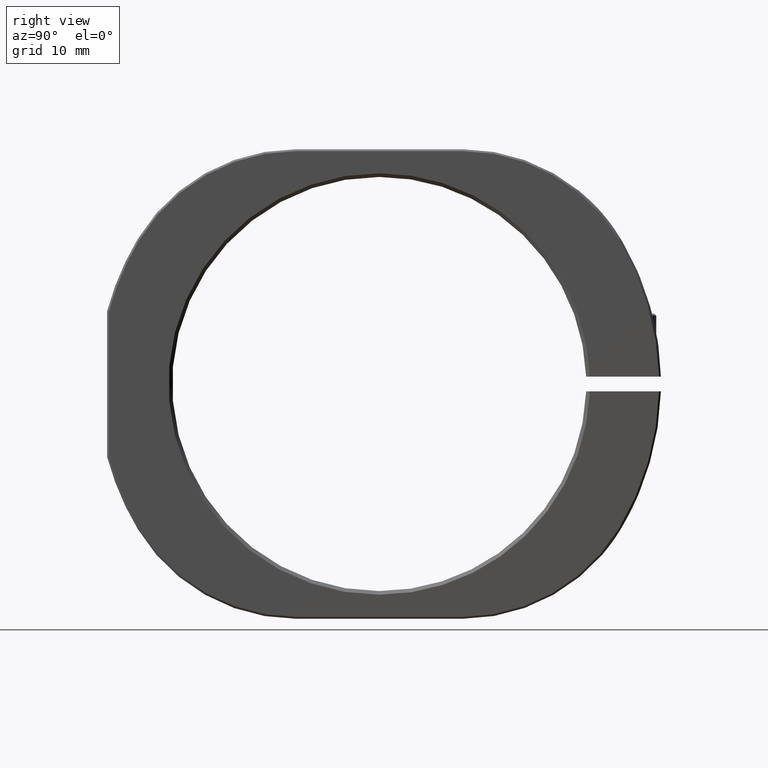
[diagram: clean part render]
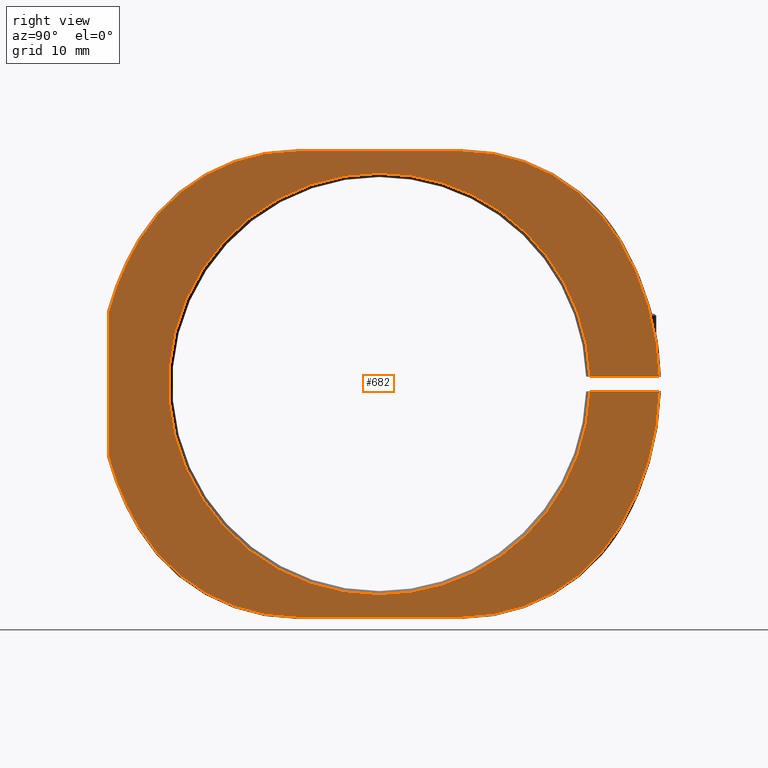
[diagram: same view with one face highlighted and labeled with its STEP entity id]
A machine part, right view. The second image highlights one B-rep face of the part: STEP entity #682.
In plain terms, the highlighted planar face has unit normal (1, 0, 0).
Its self-contained STEP definition (entity closure, byte-faithful):
#4 = CIRCLE ( 'NONE', #827, 28.50000000000001066 ) ;
#35 = ORIENTED_EDGE ( 'NONE', *, *, #2029, .T. ) ;
#49 = CARTESIAN_POINT ( 'NONE',  ( 0.5085676037483114476, -18.74742428530111127, 6.750000000000002665 ) ) ;
#81 = CARTESIAN_POINT ( 'NONE',  ( 0.5085676037483114476, 3.706751272933050512, -31.49999999999996447 ) ) ;
#90 = DIRECTION ( 'NONE',  ( 0.0000000000000000000, 0.0000000000000000000, -1.000000000000000000 ) ) ;
#112 = EDGE_CURVE ( 'NONE', #381, #2086, #1621, .T. ) ;
#114 = EDGE_CURVE ( 'NONE', #668, #1264, #123, .T. ) ;
#123 = LINE ( 'NONE', #1246, #1842 ) ;
#155 = CIRCLE ( 'NONE', #685, 37.84999999999995879 ) ;
#189 = EDGE_CURVE ( 'NONE', #381, #473, #649, .T. ) ;
#214 = CARTESIAN_POINT ( 'NONE',  ( 0.5085676037483114476, -7.520336506184027492, -28.50000000000001066 ) ) ;
#247 = CIRCLE ( 'NONE', #1894, 24.74999999999997513 ) ;
#258 = VERTEX_POINT ( 'NONE', #1992 ) ;
#276 = CARTESIAN_POINT ( 'NONE',  ( 0.5085676037483114476, 3.706751272933052288, 6.750000000000009770 ) ) ;
#277 = DIRECTION ( 'NONE',  ( 0.0000000000000000000, 0.0000000000000000000, -1.000000000000000000 ) ) ;
#278 = CARTESIAN_POINT ( 'NONE',  ( 0.5085676037483114476, -7.520336506184027492, 0.0000000000000000000 ) ) ;
#284 = DIRECTION ( 'NONE',  ( 1.000000000000000000, 0.0000000000000000000, 0.0000000000000000000 ) ) ;
#293 = CARTESIAN_POINT ( 'NONE',  ( 0.5085676037483114476, -7.520336506184027492, 0.0000000000000000000 ) ) ;
#313 = CIRCLE ( 'NONE', #2050, 24.74999999999998224 ) ;
#315 = ORIENTED_EDGE ( 'NONE', *, *, #1986, .T. ) ;
#337 = AXIS2_PLACEMENT_3D ( 'NONE', #1360, #1727, #1547 ) ;
#351 = DIRECTION ( 'NONE',  ( -0.0000000000000000000, 1.000000000000000000, 1.230557108643588432E-16 ) ) ;
#356 = CARTESIAN_POINT ( 'NONE',  ( 0.5085676037483114476, 46.43885358557098186, -0.9999999999999963363 ) ) ;
#381 = VERTEX_POINT ( 'NONE', #1804 ) ;
#390 = AXIS2_PLACEMENT_3D ( 'NONE', #1012, #660, #639 ) ;
#405 = AXIS2_PLACEMENT_3D ( 'NONE', #1754, #2091, #653 ) ;
#473 = VERTEX_POINT ( 'NONE', #214 ) ;
#475 = CARTESIAN_POINT ( 'NONE',  ( 0.5085676037483114476, -18.74742428530112193, 31.49999999999997868 ) ) ;
#478 = DIRECTION ( 'NONE',  ( 1.000000000000000000, 0.0000000000000000000, 0.0000000000000000000 ) ) ;
#524 = CARTESIAN_POINT ( 'NONE',  ( 0.5085676037483114476, -7.520336506184027492, 0.0000000000000000000 ) ) ;
#540 = ORIENTED_EDGE ( 'NONE', *, *, #912, .T. ) ;
#548 = VERTEX_POINT ( 'NONE', #656 ) ;
#563 = VERTEX_POINT ( 'NONE', #1936 ) ;
#574 = DIRECTION ( 'NONE',  ( 0.0000000000000000000, 0.0000000000000000000, -1.000000000000000000 ) ) ;
#598 = DIRECTION ( 'NONE',  ( 1.000000000000000000, 0.0000000000000000000, 0.0000000000000000000 ) ) ;
#619 = DIRECTION ( 'NONE',  ( 0.0000000000000000000, 0.0000000000000000000, -1.000000000000000000 ) ) ;
#639 = DIRECTION ( 'NONE',  ( 0.0000000000000000000, 0.0000000000000000000, -1.000000000000000000 ) ) ;
#640 = VECTOR ( 'NONE', #1009, 1000.000000000000000 ) ;
#642 = CARTESIAN_POINT ( 'NONE',  ( 0.5085676037483114476, 30.31645114816101128, -0.9999999999999983347 ) ) ;
#643 = VERTEX_POINT ( 'NONE', #1717 ) ;
#648 = VERTEX_POINT ( 'NONE', #1489 ) ;
#649 = CIRCLE ( 'NONE', #1158, 28.50000000000001066 ) ;
#653 = DIRECTION ( 'NONE',  ( 0.0000000000000000000, 0.0000000000000000000, -1.000000000000000000 ) ) ;
#654 = CIRCLE ( 'NONE', #2253, 37.84999999999999432 ) ;
#656 = CARTESIAN_POINT ( 'NONE',  ( 0.5085676037483114476, -18.74742428530110772, -31.49999999999996447 ) ) ;
#660 = DIRECTION ( 'NONE',  ( 1.000000000000000000, 0.0000000000000000000, 0.0000000000000000000 ) ) ;
#668 = VERTEX_POINT ( 'NONE', #968 ) ;
#682 = ADVANCED_FACE ( 'NONE', ( #1776 ), #1543, .T. ) ;
#685 = AXIS2_PLACEMENT_3D ( 'NONE', #2176, #1079, #1841 ) ;
#706 = CARTESIAN_POINT ( 'NONE',  ( 0.5085676037483114476, -7.520336506184027492, 0.0000000000000000000 ) ) ;
#713 = CIRCLE ( 'NONE', #337, 24.74999999999995381 ) ;
#723 = VECTOR ( 'NONE', #351, 1000.000000000000000 ) ;
#762 = ORIENTED_EDGE ( 'NONE', *, *, #114, .F. ) ;
#771 = DIRECTION ( 'NONE',  ( 0.0000000000000000000, 0.0000000000000000000, -1.000000000000000000 ) ) ;
#803 = VECTOR ( 'NONE', #981, 1000.000000000000000 ) ;
#806 = DIRECTION ( 'NONE',  ( -1.000000000000000000, -0.0000000000000000000, -0.0000000000000000000 ) ) ;
#826 = CARTESIAN_POINT ( 'NONE',  ( 0.5085676037483114476, -18.74742428530112193, 31.49999999999997868 ) ) ;
#827 = AXIS2_PLACEMENT_3D ( 'NONE', #706, #1257, #1970 ) ;
#837 = VERTEX_POINT ( 'NONE', #81 ) ;
#855 = CARTESIAN_POINT ( 'NONE',  ( 0.5085676037483114476, -44.07033650618404153, -9.834632682515188407 ) ) ;
#904 = CARTESIAN_POINT ( 'NONE',  ( 0.5085676037483114476, 3.706751272933050512, -31.49999999999996447 ) ) ;
#912 = EDGE_CURVE ( 'NONE', #668, #648, #1656, .T. ) ;
#936 = LINE ( 'NONE', #826, #640 ) ;
#957 = CARTESIAN_POINT ( 'NONE',  ( 0.5085676037483114476, 3.706751272933050512, -6.750000000000013323 ) ) ;
#968 = CARTESIAN_POINT ( 'NONE',  ( 0.5085676037483114476, 30.31645114816104680, 1.000000000000001776 ) ) ;
#981 = DIRECTION ( 'NONE',  ( 0.0000000000000000000, 0.0000000000000000000, -1.000000000000000000 ) ) ;
#995 = EDGE_CURVE ( 'NONE', #1675, #643, #155, .T. ) ;
#1009 = DIRECTION ( 'NONE',  ( 0.0000000000000000000, -1.000000000000000000, -3.294732647007111632E-16 ) ) ;
#1012 = CARTESIAN_POINT ( 'NONE',  ( 0.5085676037483114476, -7.520336506184027492, 0.0000000000000000000 ) ) ;
#1040 = AXIS2_PLACEMENT_3D ( 'NONE', #278, #284, #1549 ) ;
#1044 = DIRECTION ( 'NONE',  ( -1.000000000000000000, -0.0000000000000000000, -0.0000000000000000000 ) ) ;
#1046 = CIRCLE ( 'NONE', #405, 37.84999999999995879 ) ;
#1079 = DIRECTION ( 'NONE',  ( 1.000000000000000000, 0.0000000000000000000, 0.0000000000000000000 ) ) ;
#1089 = AXIS2_PLACEMENT_3D ( 'NONE', #1896, #806, #90 ) ;
#1115 = VERTEX_POINT ( 'NONE', #1850 ) ;
#1134 = ORIENTED_EDGE ( 'NONE', *, *, #2075, .T. ) ;
#1158 = AXIS2_PLACEMENT_3D ( 'NONE', #524, #1044, #1803 ) ;
#1160 = AXIS2_PLACEMENT_3D ( 'NONE', #957, #598, #771 ) ;
#1178 = ORIENTED_EDGE ( 'NONE', *, *, #2192, .T. ) ;
#1210 = ORIENTED_EDGE ( 'NONE', *, *, #1365, .T. ) ;
#1227 = DIRECTION ( 'NONE',  ( 0.0000000000000000000, -1.000000000000000000, -1.298921392457120931E-16 ) ) ;
#1232 = EDGE_CURVE ( 'NONE', #1413, #1264, #1298, .T. ) ;
#1246 = CARTESIAN_POINT ( 'NONE',  ( 0.5085676037483114476, 46.43885358557098186, 1.000000000000003997 ) ) ;
#1256 = VERTEX_POINT ( 'NONE', #475 ) ;
#1257 = DIRECTION ( 'NONE',  ( -1.000000000000000000, -0.0000000000000000000, -0.0000000000000000000 ) ) ;
#1264 = VERTEX_POINT ( 'NONE', #2246 ) ;
#1283 = DIRECTION ( 'NONE',  ( 0.0000000000000000000, 1.000000000000000000, 0.0000000000000000000 ) ) ;
#1298 = CIRCLE ( 'NONE', #1089, 28.50000000000001066 ) ;
#1328 = ORIENTED_EDGE ( 'NONE', *, *, #1851, .T. ) ;
#1350 = CIRCLE ( 'NONE', #1160, 24.74999999999996092 ) ;
#1360 = CARTESIAN_POINT ( 'NONE',  ( 0.5085676037483114476, -18.74742428530110772, -6.750000000000013323 ) ) ;
#1365 = EDGE_CURVE ( 'NONE', #258, #563, #654, .T. ) ;
#1375 = DIRECTION ( 'NONE',  ( 1.000000000000000000, 0.0000000000000000000, 0.0000000000000000000 ) ) ;
#1413 = VERTEX_POINT ( 'NONE', #2113 ) ;
#1479 = DIRECTION ( 'NONE',  ( 1.000000000000000000, 0.0000000000000000000, 0.0000000000000000000 ) ) ;
#1488 = EDGE_LOOP ( 'NONE', ( #2248, #1500, #1616, #2236, #1817, #2132, #762, #540, #315, #1178, #1996, #1210, #1134, #1823, #35, #1328 ) ) ;
#1489 = CARTESIAN_POINT ( 'NONE',  ( 0.5085676037483114476, 24.91823390905117108, 19.50286259541985956 ) ) ;
#1500 = ORIENTED_EDGE ( 'NONE', *, *, #2143, .T. ) ;
#1516 = EDGE_CURVE ( 'NONE', #837, #1592, #1350, .T. ) ;
#1543 = PLANE ( 'NONE',  #1040 ) ;
#1547 = DIRECTION ( 'NONE',  ( 0.0000000000000000000, 0.0000000000000000000, -1.000000000000000000 ) ) ;
#1549 = DIRECTION ( 'NONE',  ( 0.0000000000000000000, 0.0000000000000000000, -1.000000000000000000 ) ) ;
#1592 = VERTEX_POINT ( 'NONE', #1858 ) ;
#1616 = ORIENTED_EDGE ( 'NONE', *, *, #112, .F. ) ;
#1621 = LINE ( 'NONE', #356, #723 ) ;
#1656 = CIRCLE ( 'NONE', #390, 37.84999999999999432 ) ;
#1665 = LINE ( 'NONE', #2071, #803 ) ;
#1675 = VERTEX_POINT ( 'NONE', #855 ) ;
#1717 = CARTESIAN_POINT ( 'NONE',  ( 0.5085676037483114476, -39.95890692141919232, -19.50286259541985245 ) ) ;
#1727 = DIRECTION ( 'NONE',  ( 1.000000000000000000, 0.0000000000000000000, 0.0000000000000000000 ) ) ;
#1754 = CARTESIAN_POINT ( 'NONE',  ( 0.5085676037483114476, -7.520336506184027492, 0.0000000000000000000 ) ) ;
#1755 = VECTOR ( 'NONE', #1283, 1000.000000000000000 ) ;
#1771 = EDGE_CURVE ( 'NONE', #473, #1413, #4, .T. ) ;
#1776 = FACE_OUTER_BOUND ( 'NONE', #1488, .T. ) ;
#1803 = DIRECTION ( 'NONE',  ( 0.0000000000000000000, 8.825786105846909724E-16, -1.000000000000000000 ) ) ;
#1804 = CARTESIAN_POINT ( 'NONE',  ( 0.5085676037483114476, 20.96211423106820959, -0.9999999999999993339 ) ) ;
#1817 = ORIENTED_EDGE ( 'NONE', *, *, #1771, .T. ) ;
#1823 = ORIENTED_EDGE ( 'NONE', *, *, #995, .T. ) ;
#1841 = DIRECTION ( 'NONE',  ( 0.0000000000000000000, 0.0000000000000000000, -1.000000000000000000 ) ) ;
#1842 = VECTOR ( 'NONE', #1227, 1000.000000000000000 ) ;
#1850 = CARTESIAN_POINT ( 'NONE',  ( 0.5085676037483114476, 3.706751272933043850, 31.49999999999999289 ) ) ;
#1851 = EDGE_CURVE ( 'NONE', #548, #837, #2100, .T. ) ;
#1858 = CARTESIAN_POINT ( 'NONE',  ( 0.5085676037483114476, 24.91823390905114621, -19.50286259541985601 ) ) ;
#1876 = EDGE_CURVE ( 'NONE', #1256, #258, #247, .T. ) ;
#1894 = AXIS2_PLACEMENT_3D ( 'NONE', #49, #1479, #574 ) ;
#1896 = CARTESIAN_POINT ( 'NONE',  ( 0.5085676037483114476, -7.520336506184027492, 0.0000000000000000000 ) ) ;
#1936 = CARTESIAN_POINT ( 'NONE',  ( 0.5085676037483114476, -44.07033650618404153, 9.834632682515323410 ) ) ;
#1970 = DIRECTION ( 'NONE',  ( 0.0000000000000000000, 0.0000000000000000000, -1.000000000000000000 ) ) ;
#1986 = EDGE_CURVE ( 'NONE', #648, #1115, #313, .T. ) ;
#1992 = CARTESIAN_POINT ( 'NONE',  ( 0.5085676037483114476, -39.95890692141923495, 19.50286259541983114 ) ) ;
#1996 = ORIENTED_EDGE ( 'NONE', *, *, #1876, .T. ) ;
#2029 = EDGE_CURVE ( 'NONE', #643, #548, #713, .T. ) ;
#2050 = AXIS2_PLACEMENT_3D ( 'NONE', #276, #1375, #619 ) ;
#2071 = CARTESIAN_POINT ( 'NONE',  ( 0.5085676037483114476, -44.07033650618404153, -9.867623827447047802 ) ) ;
#2075 = EDGE_CURVE ( 'NONE', #563, #1675, #1665, .T. ) ;
#2086 = VERTEX_POINT ( 'NONE', #642 ) ;
#2091 = DIRECTION ( 'NONE',  ( 1.000000000000000000, 0.0000000000000000000, 0.0000000000000000000 ) ) ;
#2100 = LINE ( 'NONE', #904, #1755 ) ;
#2113 = CARTESIAN_POINT ( 'NONE',  ( 0.5085676037483114476, -7.520336506184023939, 28.50000000000001066 ) ) ;
#2132 = ORIENTED_EDGE ( 'NONE', *, *, #1232, .T. ) ;
#2143 = EDGE_CURVE ( 'NONE', #1592, #2086, #1046, .T. ) ;
#2176 = CARTESIAN_POINT ( 'NONE',  ( 0.5085676037483114476, -7.520336506184027492, 0.0000000000000000000 ) ) ;
#2192 = EDGE_CURVE ( 'NONE', #1115, #1256, #936, .T. ) ;
#2236 = ORIENTED_EDGE ( 'NONE', *, *, #189, .T. ) ;
#2246 = CARTESIAN_POINT ( 'NONE',  ( 0.5085676037483114476, 20.96211423106820959, 1.000000000000000666 ) ) ;
#2248 = ORIENTED_EDGE ( 'NONE', *, *, #1516, .T. ) ;
#2253 = AXIS2_PLACEMENT_3D ( 'NONE', #293, #478, #277 ) ;